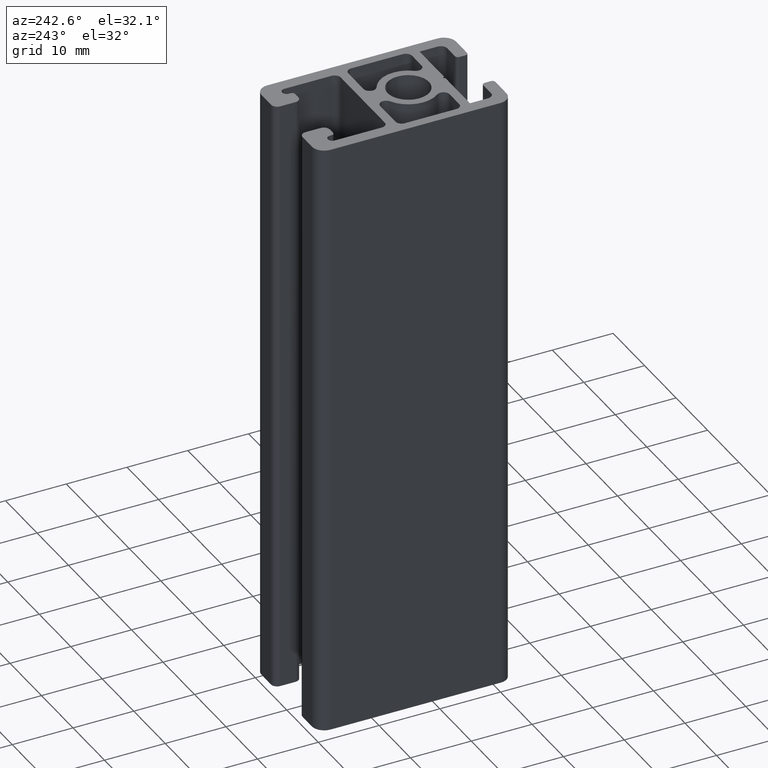
[diagram: clean part render]
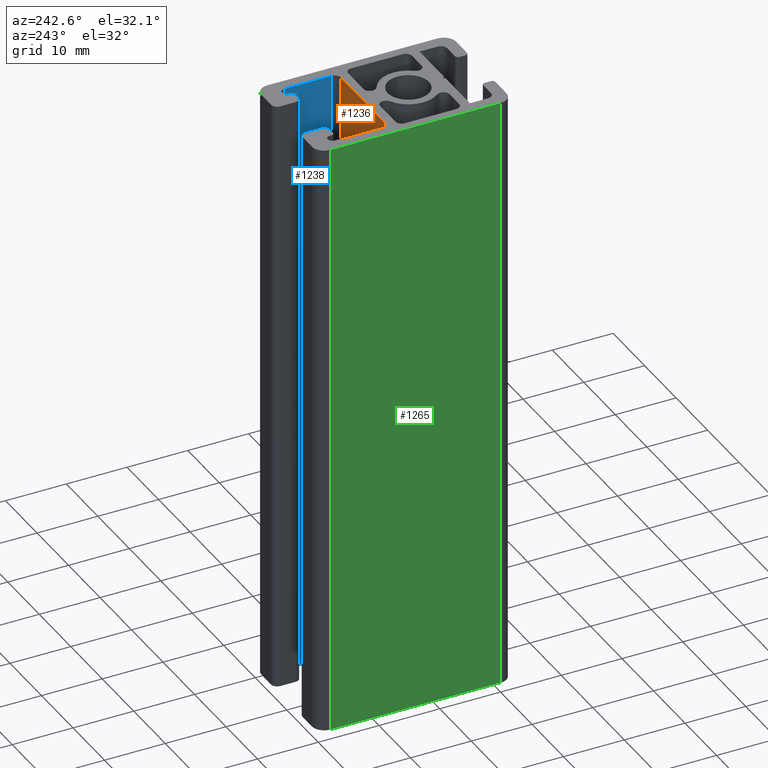
[diagram: same view with three faces highlighted in distinct colors, each labeled with its STEP entity id]
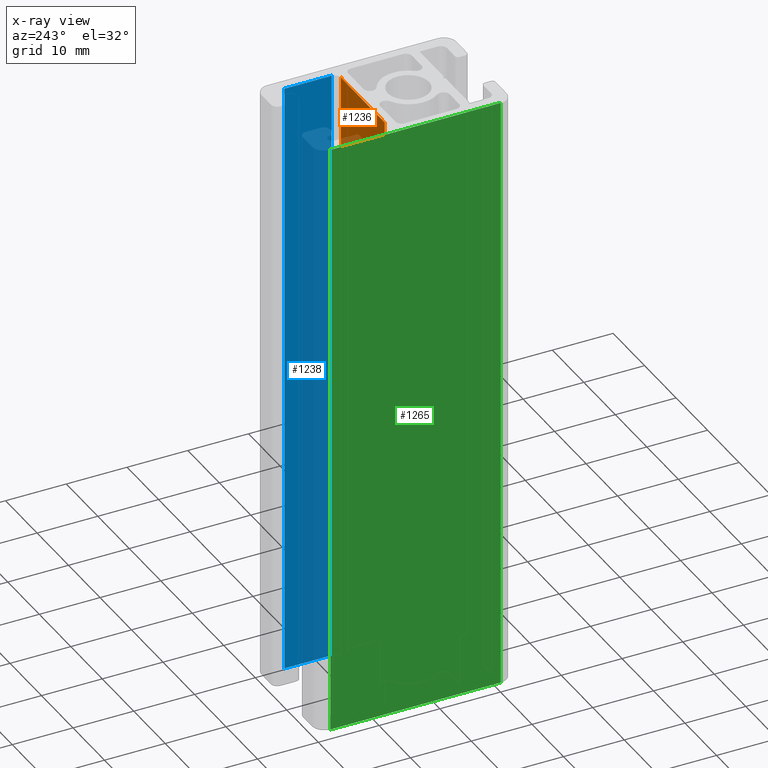
[diagram: x-ray of the same camera — body ghosted, the three highlighted faces saturated]
A machine part, auxiliary view with three faces highlighted in distinct colors.
The next image is the same camera in x-ray (body ghosted, the three faces saturated) — at least one of them is partly hidden behind the body in this view.
Their STEP definitions:

[orange] entity #1236 — the highlighted planar face has unit normal (-0, -1, 0).
#37=PLANE('',#1328);
#83=FACE_OUTER_BOUND('',#147,.T.);
#147=EDGE_LOOP('',(#919,#920,#921,#922));
#249=LINE('',#1950,#372);
#250=LINE('',#1954,#373);
#251=LINE('',#1956,#374);
#252=LINE('',#1957,#375);
#372=VECTOR('',#1567,100.);
#373=VECTOR('',#1572,14.0000039919057);
#374=VECTOR('',#1573,100.);
#375=VECTOR('',#1574,14.0000039919057);
#556=VERTEX_POINT('',#1947);
#557=VERTEX_POINT('',#1949);
#558=VERTEX_POINT('',#1953);
#559=VERTEX_POINT('',#1955);
#706=EDGE_CURVE('',#557,#556,#249,.T.);
#708=EDGE_CURVE('',#558,#556,#250,.T.);
#709=EDGE_CURVE('',#559,#558,#251,.T.);
#710=EDGE_CURVE('',#557,#559,#252,.T.);
#919=ORIENTED_EDGE('',*,*,#708,.F.);
#920=ORIENTED_EDGE('',*,*,#709,.F.);
#921=ORIENTED_EDGE('',*,*,#710,.F.);
#922=ORIENTED_EDGE('',*,*,#706,.T.);
#1236=ADVANCED_FACE('',(#83),#37,.F.);
#1328=AXIS2_PLACEMENT_3D('',#1952,#1570,#1571);
#1567=DIRECTION('',(0.,0.,1.));
#1570=DIRECTION('center_axis',(-6.34412976034606E-16,-1.,0.));
#1571=DIRECTION('ref_axis',(0.,0.,-1.));
#1572=DIRECTION('',(-1.,6.34412976034606E-16,0.));
#1573=DIRECTION('',(0.,0.,1.));
#1574=DIRECTION('',(1.,-6.34412976034606E-16,0.));
#1947=CARTESIAN_POINT('',(-7.00000199595285,7.50000000000001,100.));
#1949=CARTESIAN_POINT('',(-7.00000199595285,7.50000000000001,0.));
#1950=CARTESIAN_POINT('',(-7.00000199595285,7.50000000000001,0.));
#1952=CARTESIAN_POINT('Origin',(7.00000199595285,7.5,0.));
#1953=CARTESIAN_POINT('',(7.00000199595285,7.5,100.));
#1954=CARTESIAN_POINT('',(3.50000099797642,7.5,100.));
#1955=CARTESIAN_POINT('',(7.00000199595285,7.5,0.));
#1956=CARTESIAN_POINT('',(7.00000199595285,7.5,0.));
#1957=CARTESIAN_POINT('',(3.50000099797642,7.5,0.));

[blue] entity #1238 — the highlighted planar face has unit normal (1, -0, 0).
#38=PLANE('',#1332);
#85=FACE_OUTER_BOUND('',#149,.T.);
#149=EDGE_LOOP('',(#927,#928,#929,#930));
#253=LINE('',#1962,#376);
#254=LINE('',#1966,#377);
#255=LINE('',#1968,#378);
#256=LINE('',#1969,#379);
#376=VECTOR('',#1579,100.);
#377=VECTOR('',#1584,7.76000199595284);
#378=VECTOR('',#1585,100.);
#379=VECTOR('',#1586,7.76000199595284);
#560=VERTEX_POINT('',#1959);
#561=VERTEX_POINT('',#1961);
#562=VERTEX_POINT('',#1965);
#563=VERTEX_POINT('',#1967);
#712=EDGE_CURVE('',#561,#560,#253,.T.);
#714=EDGE_CURVE('',#562,#560,#254,.T.);
#715=EDGE_CURVE('',#563,#562,#255,.T.);
#716=EDGE_CURVE('',#561,#563,#256,.T.);
#927=ORIENTED_EDGE('',*,*,#714,.F.);
#928=ORIENTED_EDGE('',*,*,#715,.F.);
#929=ORIENTED_EDGE('',*,*,#716,.F.);
#930=ORIENTED_EDGE('',*,*,#712,.T.);
#1238=ADVANCED_FACE('',(#85),#38,.F.);
#1332=AXIS2_PLACEMENT_3D('',#1964,#1582,#1583);
#1579=DIRECTION('',(0.,0.,1.));
#1582=DIRECTION('center_axis',(1.,-7.15349703005349E-16,0.));
#1583=DIRECTION('ref_axis',(0.,0.,-1.));
#1584=DIRECTION('',(-7.15349703005349E-16,-1.,0.));
#1585=DIRECTION('',(0.,0.,1.));
#1586=DIRECTION('',(7.15349703005349E-16,1.,0.));
#1959=CARTESIAN_POINT('',(8.,8.49999800404715,100.));
#1961=CARTESIAN_POINT('',(8.,8.49999800404715,0.));
#1962=CARTESIAN_POINT('',(8.,8.49999800404715,0.));
#1964=CARTESIAN_POINT('Origin',(8.,16.26,0.));
#1965=CARTESIAN_POINT('',(8.,16.26,100.));
#1966=CARTESIAN_POINT('',(8.,10.13,100.));
#1967=CARTESIAN_POINT('',(8.,16.26,0.));
#1968=CARTESIAN_POINT('',(8.,16.26,0.));
#1969=CARTESIAN_POINT('',(8.,10.13,0.));

[green] entity #1265 — the highlighted planar face has unit normal (-1, -0, 0).
#51=PLANE('',#1390);
#112=FACE_OUTER_BOUND('',#180,.T.);
#180=EDGE_LOOP('',(#1091,#1092,#1093,#1094));
#303=LINE('',#2122,#426);
#305=LINE('',#2128,#428);
#307=LINE('',#2134,#430);
#308=LINE('',#2135,#431);
#426=VECTOR('',#1741,28.);
#428=VECTOR('',#1747,100.);
#430=VECTOR('',#1753,100.);
#431=VECTOR('',#1754,28.);
#614=VERTEX_POINT('',#2119);
#615=VERTEX_POINT('',#2121);
#617=VERTEX_POINT('',#2127);
#619=VERTEX_POINT('',#2133);
#792=EDGE_CURVE('',#615,#614,#303,.T.);
#795=EDGE_CURVE('',#617,#615,#305,.T.);
#798=EDGE_CURVE('',#619,#614,#307,.T.);
#799=EDGE_CURVE('',#617,#619,#308,.T.);
#1091=ORIENTED_EDGE('',*,*,#792,.T.);
#1092=ORIENTED_EDGE('',*,*,#798,.F.);
#1093=ORIENTED_EDGE('',*,*,#799,.F.);
#1094=ORIENTED_EDGE('',*,*,#795,.T.);
#1265=ADVANCED_FACE('',(#112),#51,.T.);
#1390=AXIS2_PLACEMENT_3D('',#2132,#1751,#1752);
#1741=DIRECTION('',(-1.58603289232165E-16,1.,0.));
#1747=DIRECTION('',(0.,0.,1.));
#1751=DIRECTION('center_axis',(-1.,-1.58603289232165E-16,0.));
#1752=DIRECTION('ref_axis',(1.77635683940025E-16,-1.,0.));
#1753=DIRECTION('',(0.,0.,1.));
#1754=DIRECTION('',(-1.58603289232165E-16,1.,0.));
#2119=CARTESIAN_POINT('',(-10.,18.,100.));
#2121=CARTESIAN_POINT('',(-10.,-10.,100.));
#2122=CARTESIAN_POINT('',(-10.,11.,100.));
#2127=CARTESIAN_POINT('',(-10.,-10.,0.));
#2128=CARTESIAN_POINT('',(-10.,-10.,0.));
#2132=CARTESIAN_POINT('Origin',(-10.,18.,0.));
#2133=CARTESIAN_POINT('',(-10.,18.,0.));
#2134=CARTESIAN_POINT('',(-10.,18.,0.));
#2135=CARTESIAN_POINT('',(-10.,11.,0.));